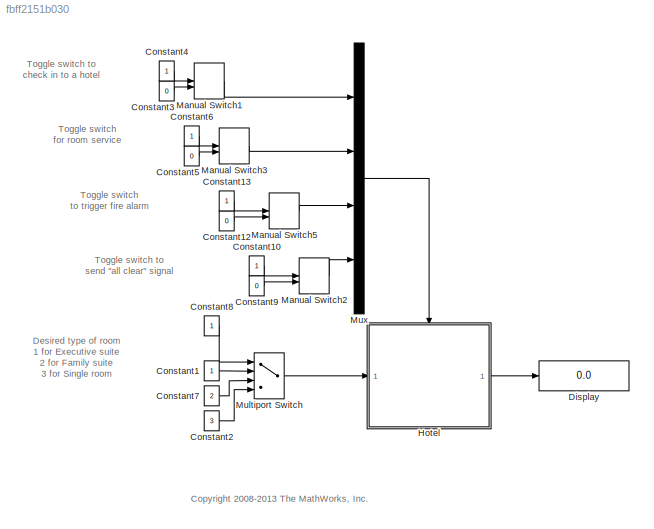
MODEL slx_fbff2151b030
KIND model
CONFIG AbsTol = auto
CONFIG EnableMultiTasking = on
CONFIG FixedStep = 0.2
CONFIG MaxStep = auto
CONFIG MinStep = auto
CONFIG RelTol = 1e-3
CONFIG SampleTimeConstraint = Unconstrained
CONFIG Solver = FixedStepDiscrete
CONFIG SolverName = FixedStepDiscrete
CONFIG StartTime = 0.0
CONFIG StopTime = Inf
BLOCK [Constant] Constant1
BLOCK [Constant] Constant10
BLOCK [Constant] Constant12
  Value = 0
BLOCK [Constant] Constant13
BLOCK [Constant] Constant2
  Value = 3
BLOCK [Constant] Constant3
  Value = 0
BLOCK [Constant] Constant4
BLOCK [Constant] Constant5
  Value = 0
BLOCK [Constant] Constant6
BLOCK [Constant] Constant7
  Value = 2
BLOCK [Constant] Constant8
BLOCK [Constant] Constant9
  Value = 0
BLOCK [Display] Display
  Decimation = 1
  Ports = [1]
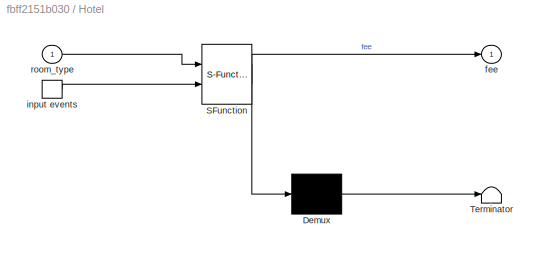
BLOCK [SubSystem] Hotel
  ErrorFcn = Stateflow.Translate.translate
  PermitHierarchicalResolution = ExplicitOnly
  Ports = [1, 1, 0, 1]
  RequestExecContextInheritance = off
  SFBlockType = Chart
  TreatAsAtomicUnit = on
  Variant = off
BLOCK [Demux] Hotel/ Demux 
  Outputs = 1
  Ports = [1, 1]
BLOCK [S-Function] Hotel/ SFunction 
  EnableBusSupport = off
  FunctionName = sf_sfun
  PortCounts = [2 2]
  Ports = [2, 2]
  SFcnIsStateOwnerBlock = off
  SFunctionDeploymentMode = off
  Tag = Stateflow S-Function sf_semantics_hotel_checkin 1
BLOCK [Terminator] Hotel/ Terminator 
BLOCK [TriggerPort] Hotel/ input events 
  Ports = [0, 1]
  ShowOutputPort = on
  TriggerType = either
  VariantControl = (inherit)
BLOCK [Outport] Hotel/fee
  IconDisplay = Port number
BLOCK [Inport] Hotel/room_type
  IconDisplay = Port number
BLOCK [ManualSwitch] Manual Switch1
  CurrentSetting = 0
BLOCK [ManualSwitch] Manual Switch2
  CurrentSetting = 0
BLOCK [ManualSwitch] Manual Switch3
  CurrentSetting = 0
BLOCK [ManualSwitch] Manual Switch5
  CurrentSetting = 0
BLOCK [MultiPortSwitch] Multiport Switch
  InputSameDT = off
  Ports = [4, 1]
  SaturateOnIntegerOverflow = off
BLOCK [Mux] Mux
  DisplayOption = bar
  Ports = [4, 1]
ANNOTATION (root): <copyright redacted>
ANNOTATION (root): Desired type of room 1 for Executive suite 2 for Family suite 3 for Single room
ANNOTATION (root): Toggle switch for room service
ANNOTATION (root): Toggle switch to trigger fire alarm
ANNOTATION (root): Toggle switch to send "all clear" signal
ANNOTATION (root): Toggle switch to check in to a hotel
LINE Constant10:1 -> Manual Switch2:1
LINE Constant12:1 -> Manual Switch5:2
LINE Constant13:1 -> Manual Switch5:1
LINE Constant1:1 -> Multiport Switch:2
LINE Constant2:1 -> Multiport Switch:4
LINE Constant3:1 -> Manual Switch1:2
LINE Constant4:1 -> Manual Switch1:1
LINE Constant5:1 -> Manual Switch3:2
LINE Constant6:1 -> Manual Switch3:1
LINE Constant7:1 -> Multiport Switch:3
LINE Constant8:1 -> Multiport Switch:1
LINE Constant9:1 -> Manual Switch2:2
LINE Hotel:1 -> Display:1
LINE Manual Switch1:1 -> Mux:1
LINE Manual Switch2:1 -> Mux:4
LINE Manual Switch3:1 -> Mux:2
LINE Manual Switch5:1 -> Mux:3
LINE Multiport Switch:1 -> Hotel:1
LINE Mux:1 -> Hotel:trigger
CHART Hotel states=12 transitions=14
  STATE_LABEL 'Check_in'
  STATE_LABEL 'Checked_in\non room_service:\n  service = service + 1;\n  fee = expenses(service);'
  STATE_LABEL 'Executive_suite'
  STATE_LABEL 'Dining_area'
  STATE_LABEL 'Bedroom'
  STATE_LABEL 'room_service'
  STATE_LABEL 'room_service'
  STATE_LABEL 'H'
  STATE_LABEL 'Family_suite'
  STATE_LABEL 'Master_bedroom'
  STATE_LABEL 'Second_bedroom'
  STATE_LABEL 'Single_room'
  STATE_LABEL '{service=0;}'
  STATE_LABEL '[room_type == 1]  {fee = 1500;}'
  STATE_LABEL '[room_type == 2]  {fee = 1000;}'
  STATE_LABEL '[room_type == 3]  {fee = 500;}'
  STATE_LABEL 'H'
  STATE_LABEL 'y = expenses(x)'
  STATE_LABEL 'SCRIPT:\nfunction y = expenses(x)\n\nif (room_type == 1)\n   y = 1500 + (x*50);    \nelse\n   if (room_type == 2)\n      y = 1000 + (x*25);\n   else \n      y = 500 + (x*5);\n   end\nend\n'
  STATE_LABEL 'Front_desk\n'
  STATE_LABEL 'check_in'
  STATE_LABEL 'H'
  STATE_LABEL 'Checked_in\non room_service:\n  service = service + 1;\n  fee = expenses(service);'
  STATE_LABEL 'Executive_suite'
  STATE_LABEL 'Dining_area'
  STATE_LABEL 'Bedroom'
  STATE_LABEL 'room_service'
  STATE_LABEL 'room_service'
  STATE_LABEL 'H'
  STATE_LABEL 'Family_suite'
  STATE_LABEL 'Master_bedroom'
  STATE_LABEL 'Second_bedroom'
  STATE_LABEL 'Single_room'
  STATE_LABEL '{service=0;}'
  STATE_LABEL '[room_type == 1]  {fee = 1500;}'
  STATE_LABEL '[room_type == 2]  {fee = 1000;}'
  STATE_LABEL '[room_type == 3]  {fee = 500;}'
  STATE_LABEL 'H'
  STATE_LABEL 'Executive_suite'
  STATE_LABEL 'Dining_area'
